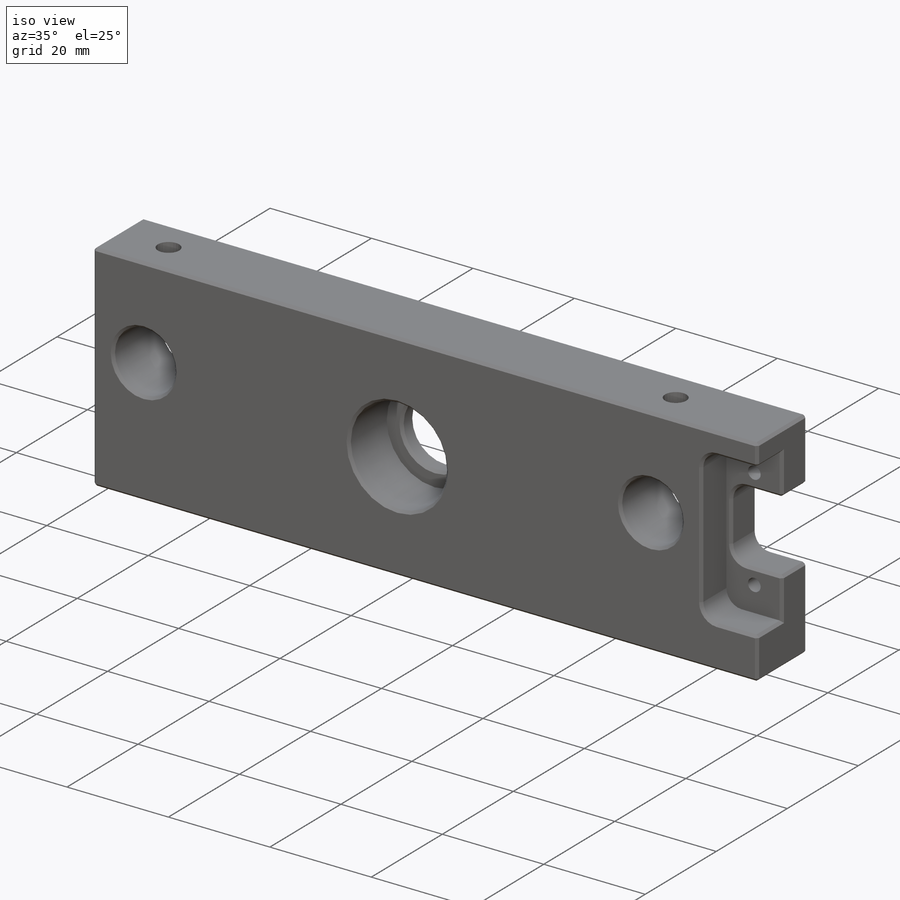
[diagram: iso view]
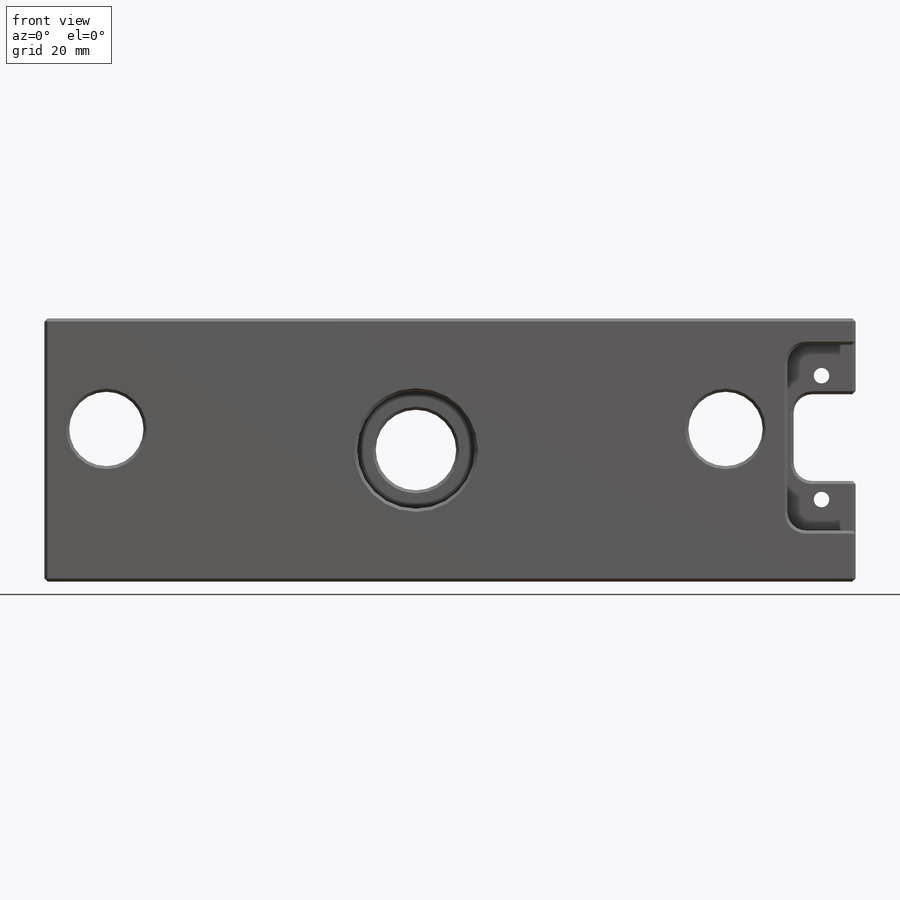
[diagram: front view]
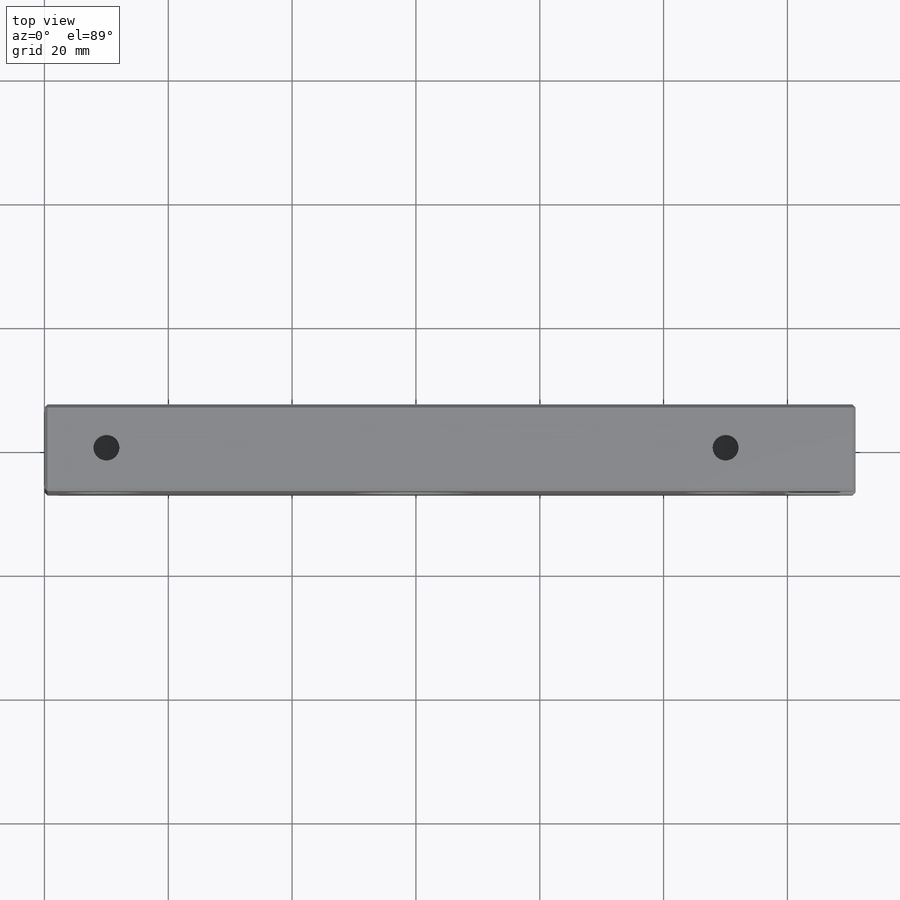
[diagram: top view]
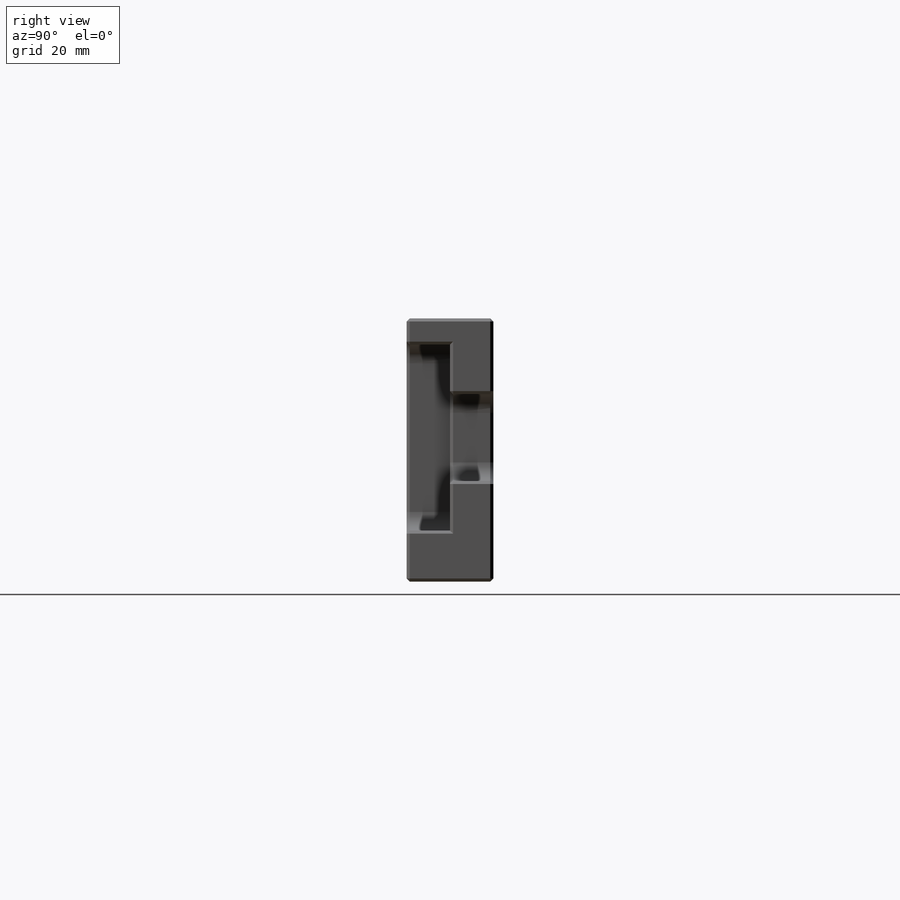
[diagram: right view]
SOLIDWORKS PART (.sldprt)
format: sldprt  version: not decoded by parser v0  size: 521,216 bytes
history: native  units: mm
features: sketch x16, thread x8, cut_extrude x6, hole x4, extrude x2, material x1, mirror x1, fillet x1, chamfer x1 (+12 scaffold rows collapsed)
feature tree (52):
  scaffold x12  (default folders/planes/origin — collapsed)
  material  "Material <not specified>"
  sketch  "Sketch1"  dims[D1=120.0mm D2=42.5mm]
  extrude  "Boss-Extrude1"  Depth=14mm
  sketch  "Sketch2"  dims[D1=19.0mm]
  cut_extrude  "Cut-Extrude1"  Depth=10.6mm
  sketch  "Sketch3"  dims[D1=13.0mm]
  cut_extrude  "Cut-Extrude2"  [1 undecoded]
  sketch  "Sketch5"  dims[c1.D1=12.0mm c1.D2=12.0mm c1.D4=12.0mm c1.D3=50.0mm c2.D4=50.0mm c2.D5=3.4mm]
  cut_extrude  "Cut-Extrude4"  [1 undecoded]
  hole  "M5x0.8 Tapped Hole1"  Diameter=4.2mm Depth=10.8mm
  sketch  "Sketch9"  dims[c1.D1=10.0mm c1.D2=22.5mm c1.D3=35.0mm c2.D1=50.0mm c2.D2=22.0mm]
  sketch  "Sketch8"  dims[hole-wizard template sketch: 47 standard entries collapsed; hole parameters kept: c15.Tap Drill Depth=10.8mm c15.D3=~14.816244mm c15.Drill Angle=118.0deg]
  thread  "Hole Thread1"  Diameter=10mm  [1 undecoded]
  thread  "Hole Thread3"  Diameter=10mm  [1 undecoded]
  sketch  "Sketch19"  dims[D1=2.5mm D2=14.0mm]
  cut_extrude  "Cut-Extrude7"  Depth=10mm
  mirror  "Mirror1"
  hole  "M5x0.8 Tapped Hole2"  Diameter=4.2mm Depth=11.85mm
  sketch  "Sketch11"  dims[c1.D1=10.0mm c1.D2=10.0mm c1.D3=~11.792476mm c2.D1=10.0mm c2.D3=~11.792476mm c2.D4=10.0mm c3.D3=~10.146308mm c3.D2=10.0mm]
  sketch  "Sketch10"  dims[hole-wizard template sketch: 60 standard entries collapsed; hole parameters kept: c18.Thru Tap Drill Depth=11.85mm]
  thread  "Hole Thread4"  Diameter=5mm  [1 undecoded]
  thread  "Hole Thread5"  Diameter=5mm  [1 undecoded]
  sketch  "Sketch14"
  extrude  "Boss-Extrude2"  Depth=11mm
  sketch  "Sketch15"  dims[D1=30.0mm D2=11.0mm D3=17.0mm]
  cut_extrude  "Cut-Extrude5"  Depth=7mm
  sketch  "Sketch16"  dims[D1=14.0mm D2=7.0mm D3=10.0mm]
  cut_extrude  "Cut-Extrude6"  [1 undecoded]
  fillet  "Fillet1"  Radius=3mm
  hole  "M3x0.5 Tapped Hole1"  Diameter=2.5mm Depth=7mm
  sketch  "Sketch18"  dims[D1=5.0mm D2=20.0mm D3=5.5mm]
  sketch  "Sketch17"  dims[hole-wizard template sketch: 60 standard entries collapsed; hole parameters kept: c18.Thru Tap Drill Depth=7.0mm]
  thread  "Hole Thread8"  Diameter=3mm  [1 undecoded]
  thread  "Hole Thread9"  Diameter=3mm  [1 undecoded]
  chamfer  "Chamfer1"  Distance=0.5mm Angle=45deg
  hole  "M2x0.4 Tapped Hole1"  Diameter=1.6mm Depth=6mm
  sketch  "Sketch13"  dims[D1=40.0mm D2=33.5mm]
  sketch  "Sketch12"  dims[hole-wizard template sketch: 50 standard entries collapsed; hole parameters above]
  thread  "Hole Thread6"  Diameter=4mm  [1 undecoded]
  thread  "Hole Thread7"  Diameter=4mm  [1 undecoded]
decode coverage: 34 of 39 modeling features carry decoded parameters
note: ~ marks probable driven/reference dimensions
note: 11 parameter values undecoded
summary: no parameter record found for 3 features; Diameter pulled from absorbed wizard sketch
note: suppression state not decoded; provenance and decode notes live in map.json
